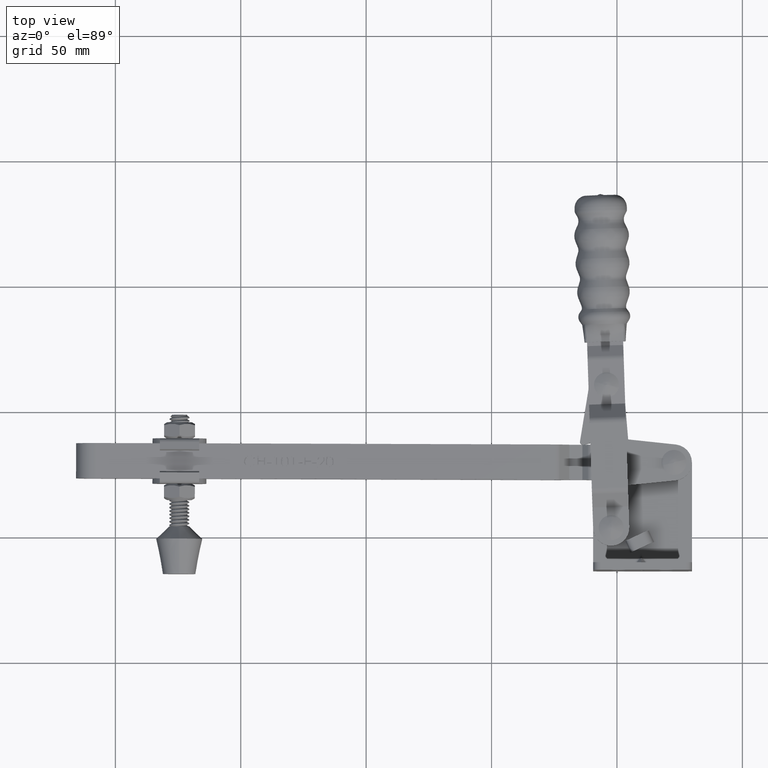
[diagram: clean part render]
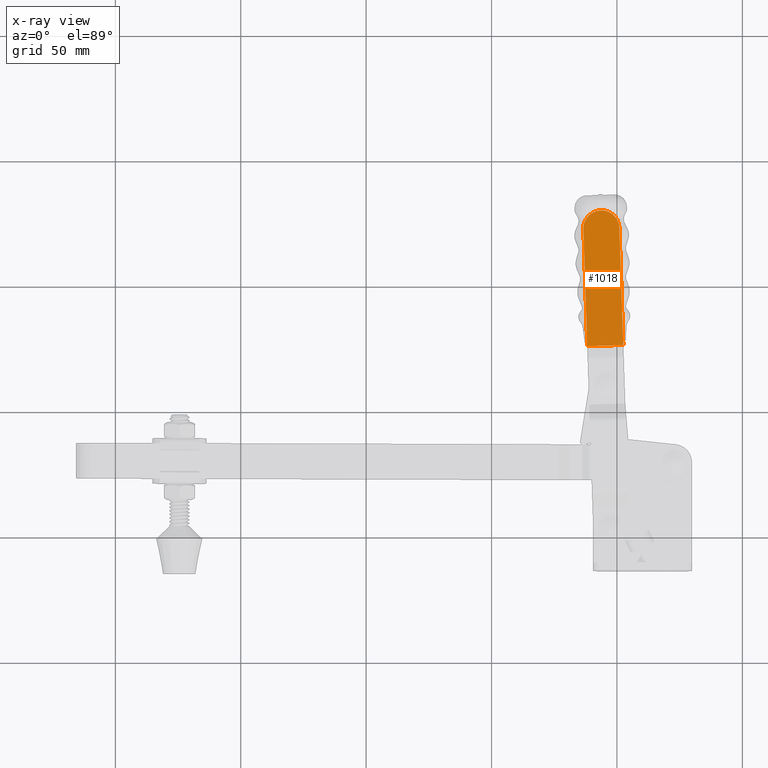
[diagram: x-ray — body ghosted, one internal face saturated and labeled with its STEP entity id]
A machine part, top view, then the same camera in x-ray: the body is ghosted and one INTERNAL B-rep face — a face not visible from any outside direction — is saturated and labeled: STEP entity #1018.
In plain terms, the highlighted planar face has unit normal (-0, 0, 1).
Its self-contained STEP definition (entity closure, byte-faithful):
#904 = ORIENTED_EDGE ( 'NONE', *, *, #1163, .T. ) ;
#1004 = EDGE_LOOP ( 'NONE', ( #1017, #1009, #904, #1511, #1115 ) ) ;
#1005 = VERTEX_POINT ( 'NONE', #38074 ) ;
#1009 = ORIENTED_EDGE ( 'NONE', *, *, #1014, .T. ) ;
#1012 = EDGE_CURVE ( 'NONE', #1015, #1005, #38052, .T. ) ;
#1014 = EDGE_CURVE ( 'NONE', #1005, #1021, #38059, .T. ) ;
#1015 = VERTEX_POINT ( 'NONE', #38047 ) ;
#1017 = ORIENTED_EDGE ( 'NONE', *, *, #1012, .T. ) ;
#1018 = ADVANCED_FACE ( 'NONE', ( #38058 ), #38105, .F. ) ;
#1021 = VERTEX_POINT ( 'NONE', #38053 ) ;
#1115 = ORIENTED_EDGE ( 'NONE', *, *, #1508, .F. ) ;
#1120 = VERTEX_POINT ( 'NONE', #38347 ) ;
#1125 = VERTEX_POINT ( 'NONE', #38348 ) ;
#1163 = EDGE_CURVE ( 'NONE', #1021, #1120, #38406, .T. ) ;
#1506 = EDGE_CURVE ( 'NONE', #1125, #1120, #41416, .T. ) ;
#1508 = EDGE_CURVE ( 'NONE', #1015, #1125, #41411, .T. ) ;
#1511 = ORIENTED_EDGE ( 'NONE', *, *, #1506, .F. ) ;
#38046 = AXIS2_PLACEMENT_3D ( 'NONE', #38097, #38092, #38091 ) ;
#38047 = CARTESIAN_POINT ( 'NONE',  ( -126.7000000000000000, -2.999742349729965800, 14.40000000000000000 ) ) ;
#38048 = DIRECTION ( 'NONE',  ( -1.000000000000000000, -1.204669080539447400E-016, 0.0000000000000000000 ) ) ;
#38049 = DIRECTION ( 'NONE',  ( 1.285128542109495700E-016, -1.000000000000000000, -0.0000000000000000000 ) ) ;
#38050 = CARTESIAN_POINT ( 'NONE',  ( -126.7000000000000000, -2.999742349729964500, 7.200000000000000200 ) ) ;
#38051 = AXIS2_PLACEMENT_3D ( 'NONE', #38050, #38049, #38048 ) ;
#38052 = CIRCLE ( 'NONE', #38051, 7.200000000000011700 ) ;
#38053 = CARTESIAN_POINT ( 'NONE',  ( -126.7000000000000000, -2.999742349729965800, 0.0000000000000000000 ) ) ;
#38057 = AXIS2_PLACEMENT_3D ( 'NONE', #38102, #38101, #38100 ) ;
#38058 = FACE_OUTER_BOUND ( 'NONE', #1004, .T. ) ;
#38059 = CIRCLE ( 'NONE', #38057, 7.200000000000011700 ) ;
#38074 = CARTESIAN_POINT ( 'NONE',  ( -133.9000000000000100, -2.999742349729966700, 7.200000000000000200 ) ) ;
#38091 = DIRECTION ( 'NONE',  ( -1.000000000000000000, -1.285128542109495700E-016, 0.0000000000000000000 ) ) ;
#38092 = DIRECTION ( 'NONE',  ( -1.285128542109495700E-016, 1.000000000000000000, 0.0000000000000000000 ) ) ;
#38097 = CARTESIAN_POINT ( 'NONE',  ( -79.90622679722557100, -2.999742349729959600, 14.40000000000000000 ) ) ;
#38100 = DIRECTION ( 'NONE',  ( -1.000000000000000000, -1.204669080539447400E-016, 0.0000000000000000000 ) ) ;
#38101 = DIRECTION ( 'NONE',  ( 1.285128542109495700E-016, -1.000000000000000000, -0.0000000000000000000 ) ) ;
#38102 = CARTESIAN_POINT ( 'NONE',  ( -126.7000000000000000, -2.999742349729965800, 7.200000000000000200 ) ) ;
#38105 = PLANE ( 'NONE',  #38046 ) ;
#38347 = CARTESIAN_POINT ( 'NONE',  ( -79.90622679722557100, -2.999742349729949800, 0.0000000000000000000 ) ) ;
#38348 = CARTESIAN_POINT ( 'NONE',  ( -79.90622679722557100, -2.999742349729949800, 14.40000000000000000 ) ) ;
#38405 = CARTESIAN_POINT ( 'NONE',  ( -79.90622679722557100, -2.999742349729959600, 0.0000000000000000000 ) ) ;
#38406 = LINE ( 'NONE', #38405, #38449 ) ;
#38448 = DIRECTION ( 'NONE',  ( 1.000000000000000000, 1.285128542109495900E-016, -0.0000000000000000000 ) ) ;
#38449 = VECTOR ( 'NONE', #38448, 1000.000000000000000 ) ;
#41408 = DIRECTION ( 'NONE',  ( 1.000000000000000000, 1.285128542109495900E-016, -0.0000000000000000000 ) ) ;
#41409 = VECTOR ( 'NONE', #41408, 1000.000000000000000 ) ;
#41410 = CARTESIAN_POINT ( 'NONE',  ( -79.90622679722557100, -2.999742349729959600, 14.40000000000000000 ) ) ;
#41411 = LINE ( 'NONE', #41410, #41409 ) ;
#41413 = DIRECTION ( 'NONE',  ( -0.0000000000000000000, -0.0000000000000000000, -1.000000000000000000 ) ) ;
#41414 = VECTOR ( 'NONE', #41413, 1000.000000000000000 ) ;
#41415 = CARTESIAN_POINT ( 'NONE',  ( -79.90622679722557100, -2.999742349729949800, 14.40000000000000000 ) ) ;
#41416 = LINE ( 'NONE', #41415, #41414 ) ;